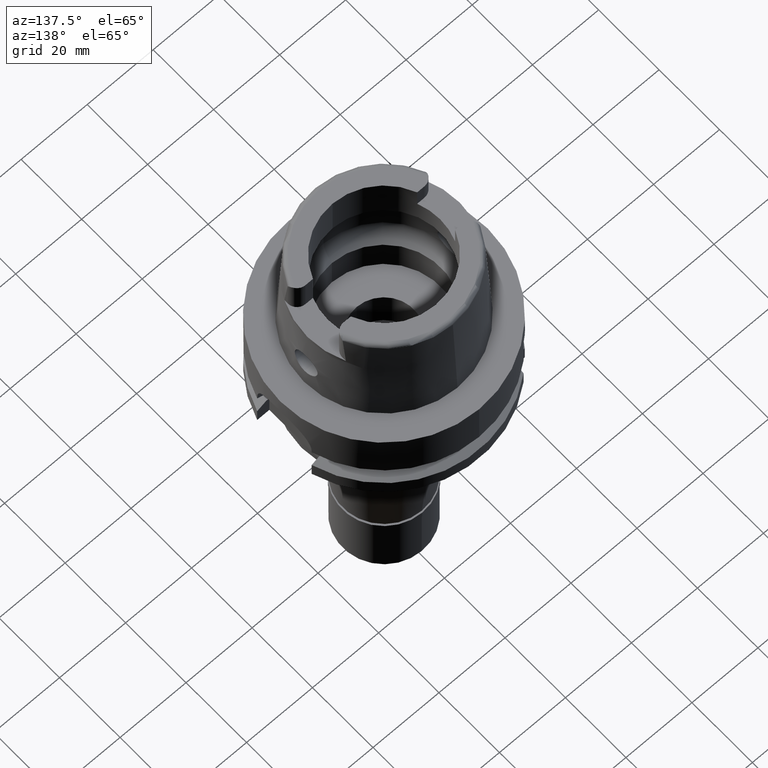
[diagram: clean part render]
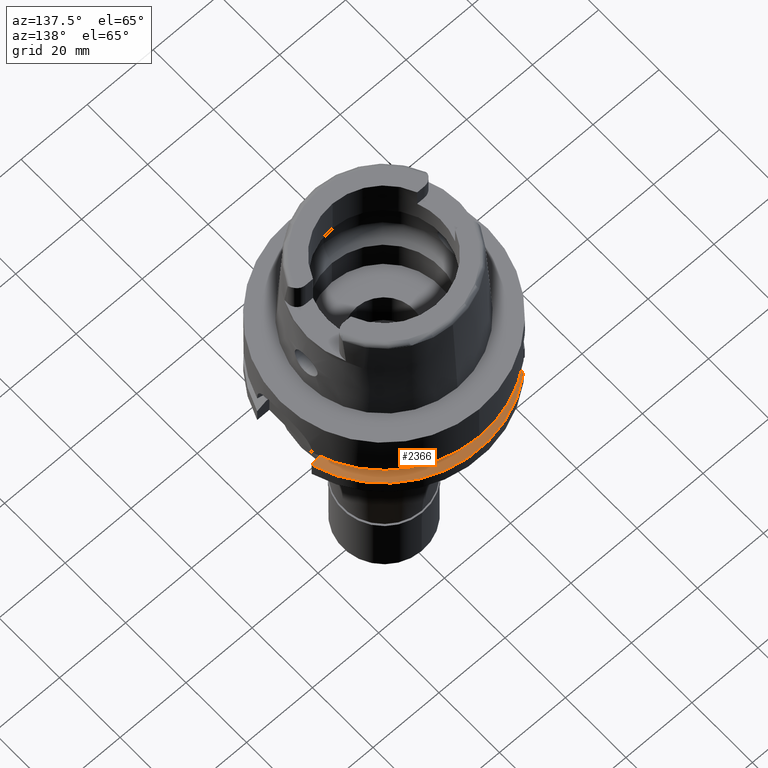
[diagram: same view with one face highlighted and labeled with its STEP entity id]
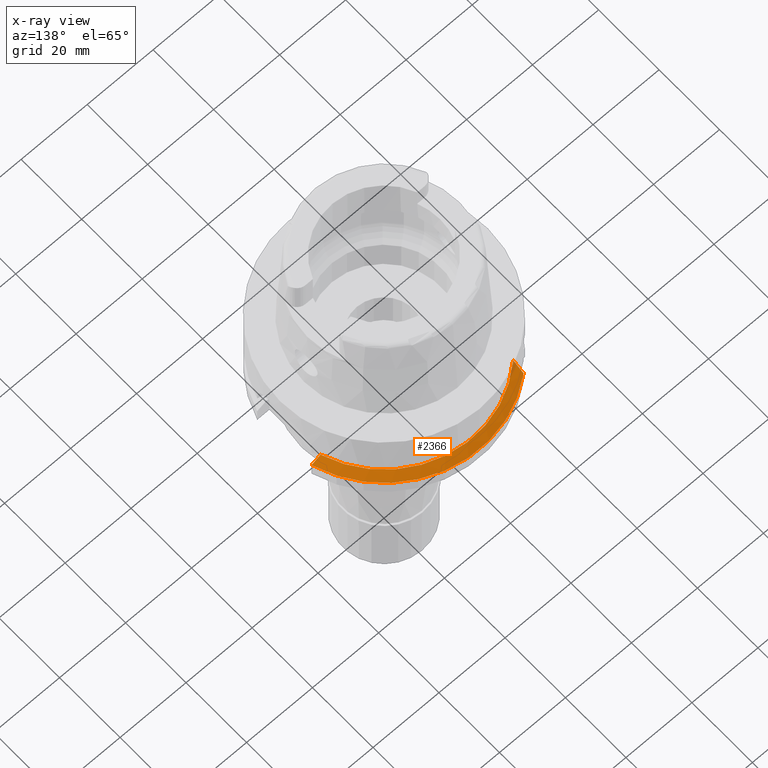
[diagram: x-ray of the same camera — body ghosted, the highlighted face saturated]
A machine part, auxiliary view. The second image highlights one B-rep face of the part: STEP entity #2366.
The next image is the same camera in x-ray: the body ghosted, the highlighted face saturated — about 1% of this face is hidden behind the body in this view.
In plain terms, the highlighted conical surface has half-angle 60 deg.
Its self-contained STEP definition (entity closure, byte-faithful):
#239 = CARTESIAN_POINT ( 'NONE',  ( 0.0000000000000000000, 0.0000000000000000000, -19.87500000000000000 ) ) ;
#311 = CARTESIAN_POINT ( 'NONE',  ( -20.00001377820999693, 24.33617572402999940, -21.37754845249999747 ) ) ;
#335 = CARTESIAN_POINT ( 'NONE',  ( -20.00000400463999739, 20.85831983694999892, -19.87500000000000000 ) ) ;
#496 = CIRCLE ( 'NONE', #3417, 31.50000000000000711 ) ;
#688 = EDGE_CURVE ( 'NONE', #1844, #2432, #496, .T. ) ;
#700 = ORIENTED_EDGE ( 'NONE', *, *, #4877, .F. ) ;
#715 = DIRECTION ( 'NONE',  ( 0.0000000000000000000, 1.000000000000000000, 0.0000000000000000000 ) ) ;
#730 = CARTESIAN_POINT ( 'NONE',  ( -20.00001377820999693, 24.33617572402999940, -21.37754845249999747 ) ) ;
#837 = CARTESIAN_POINT ( 'NONE',  ( -20.00000000000000000, 21.96673999555000378, -20.33691484340183564 ) ) ;
#857 = VERTEX_POINT ( 'NONE', #3687 ) ;
#943 = ORIENTED_EDGE ( 'NONE', *, *, #5452, .T. ) ;
#947 = CARTESIAN_POINT ( 'NONE',  ( 30.18691748977999723, 9.000000692501998856, -21.37750466033000052 ) ) ;
#1096 = CARTESIAN_POINT ( 'NONE',  ( 29.24010114716435282, 9.000001384423200079, -20.85364148863786582 ) ) ;
#1535 = ORIENTED_EDGE ( 'NONE', *, *, #2863, .T. ) ;
#1844 = VERTEX_POINT ( 'NONE', #730 ) ;
#2002 = CARTESIAN_POINT ( 'NONE',  ( 27.46035048453000016, 9.000000214587998926, -19.87500000000000000 ) ) ;
#2077 = ORIENTED_EDGE ( 'NONE', *, *, #688, .F. ) ;
#2247 = DIRECTION ( 'NONE',  ( 0.0000000000000000000, 0.0000000000000000000, -1.000000000000000000 ) ) ;
#2366 = ADVANCED_FACE ( 'NONE', ( #2665 ), #4207, .T. ) ;
#2410 = CARTESIAN_POINT ( 'NONE',  ( 28.33125527635132102, 9.000000429736060070, -20.35280760002601497 ) ) ;
#2432 = VERTEX_POINT ( 'NONE', #947 ) ;
#2607 = B_SPLINE_CURVE_WITH_KNOTS ( 'NONE', 3,
 ( #2002, #2410, #1096, #4110 ),
 .UNSPECIFIED., .F., .F.,
 ( 4, 4 ),
 ( 0.0000000000000000000, 1.000000000000000000 ),
 .UNSPECIFIED. ) ;
#2665 = FACE_OUTER_BOUND ( 'NONE', #4793, .T. ) ;
#2693 = CARTESIAN_POINT ( 'NONE',  ( 0.0000000000000000000, 0.0000000000000000000, -20.62624953738000144 ) ) ;
#2863 = EDGE_CURVE ( 'NONE', #4932, #857, #5088, .T. ) ;
#3028 = CARTESIAN_POINT ( 'NONE',  ( -20.00000400463999739, 20.85831983694999892, -19.87500000000000000 ) ) ;
#3239 = AXIS2_PLACEMENT_3D ( 'NONE', #239, #4505, #715 ) ;
#3417 = AXIS2_PLACEMENT_3D ( 'NONE', #3935, #3907, #3961 ) ;
#3604 = B_SPLINE_CURVE_WITH_KNOTS ( 'NONE', 3,
 ( #335, #837, #5411, #311 ),
 .UNSPECIFIED., .F., .F.,
 ( 4, 4 ),
 ( 0.0000000000000000000, 1.000000000000000000 ),
 .UNSPECIFIED. ) ;
#3687 = CARTESIAN_POINT ( 'NONE',  ( 27.46035048453000016, 9.000000214587998926, -19.87500000000000000 ) ) ;
#3907 = DIRECTION ( 'NONE',  ( 0.0000000000000000000, 0.0000000000000000000, -1.000000000000000000 ) ) ;
#3935 = CARTESIAN_POINT ( 'NONE',  ( 0.0000000000000000000, 0.0000000000000000000, -21.37749907476000288 ) ) ;
#3961 = DIRECTION ( 'NONE',  ( -0.6349206349206079070, 0.7725773665802099233, 0.0000000000000000000 ) ) ;
#4110 = CARTESIAN_POINT ( 'NONE',  ( 30.18691748977999723, 9.000000692501998856, -21.37750466033000052 ) ) ;
#4207 = CONICAL_SURFACE ( 'NONE', #5181, 30.19879763209999979, 1.047197551196400456 ) ;
#4301 = DIRECTION ( 'NONE',  ( 0.0000000000000000000, -1.000000000000000000, 0.0000000000000000000 ) ) ;
#4505 = DIRECTION ( 'NONE',  ( 0.0000000000000000000, 0.0000000000000000000, -1.000000000000000000 ) ) ;
#4793 = EDGE_LOOP ( 'NONE', ( #700, #1535, #943, #2077 ) ) ;
#4877 = EDGE_CURVE ( 'NONE', #4932, #1844, #3604, .T. ) ;
#4932 = VERTEX_POINT ( 'NONE', #3028 ) ;
#5088 = CIRCLE ( 'NONE', #3239, 28.89759526419000224 ) ;
#5181 = AXIS2_PLACEMENT_3D ( 'NONE', #2693, #2247, #4301 ) ;
#5411 = CARTESIAN_POINT ( 'NONE',  ( -20.00000000000000000, 23.12602529124333728, -20.83776432756850028 ) ) ;
#5452 = EDGE_CURVE ( 'NONE', #857, #2432, #2607, .T. ) ;